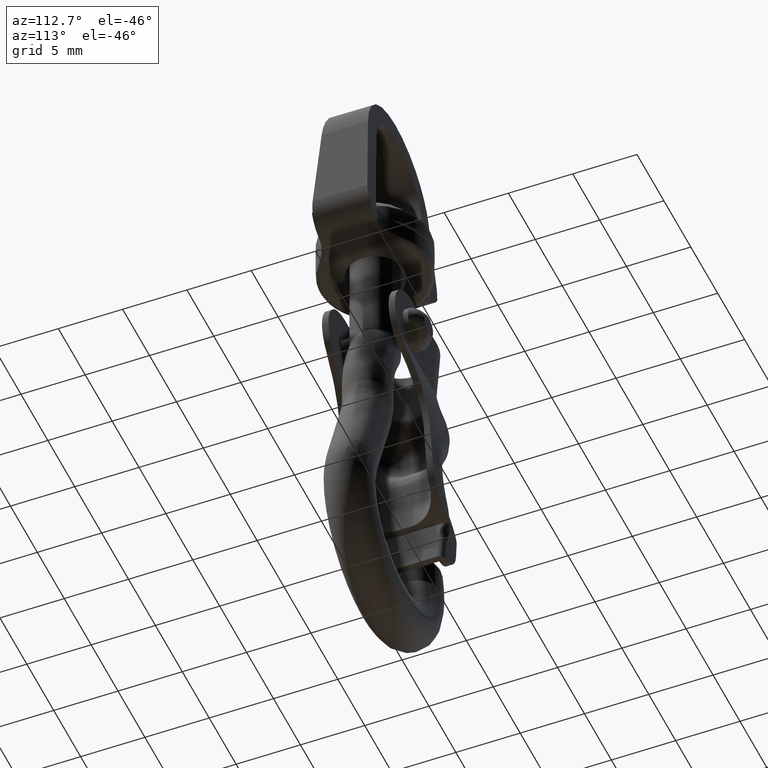
[diagram: clean part render]
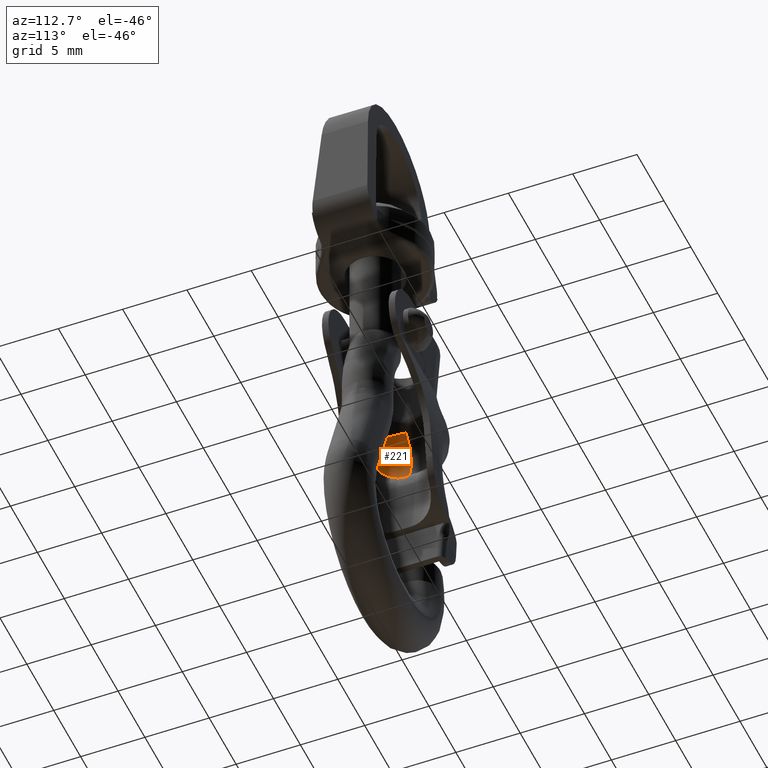
[diagram: same view with one face highlighted and labeled with its STEP entity id]
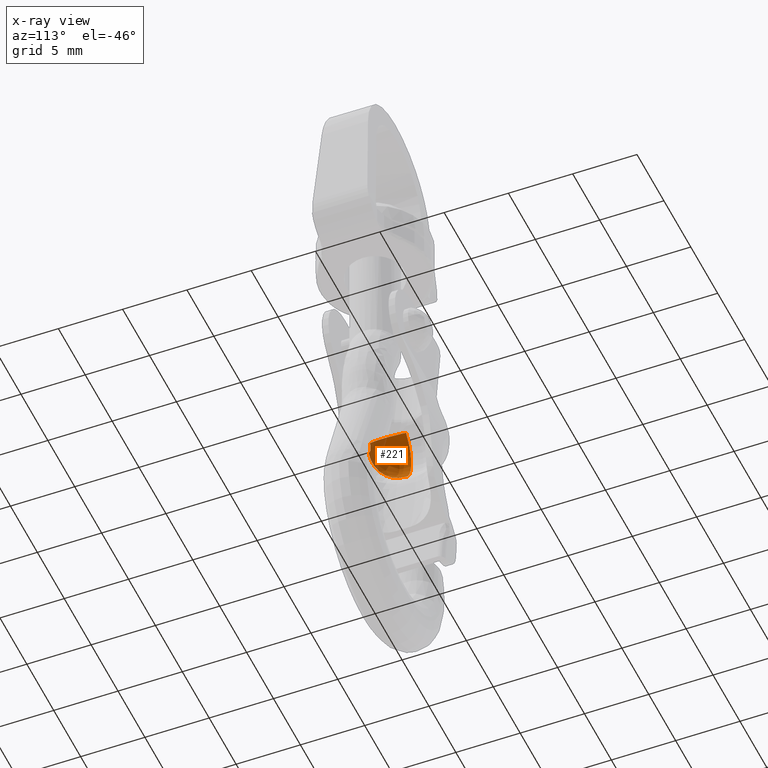
[diagram: x-ray of the same camera — body ghosted, the highlighted face saturated]
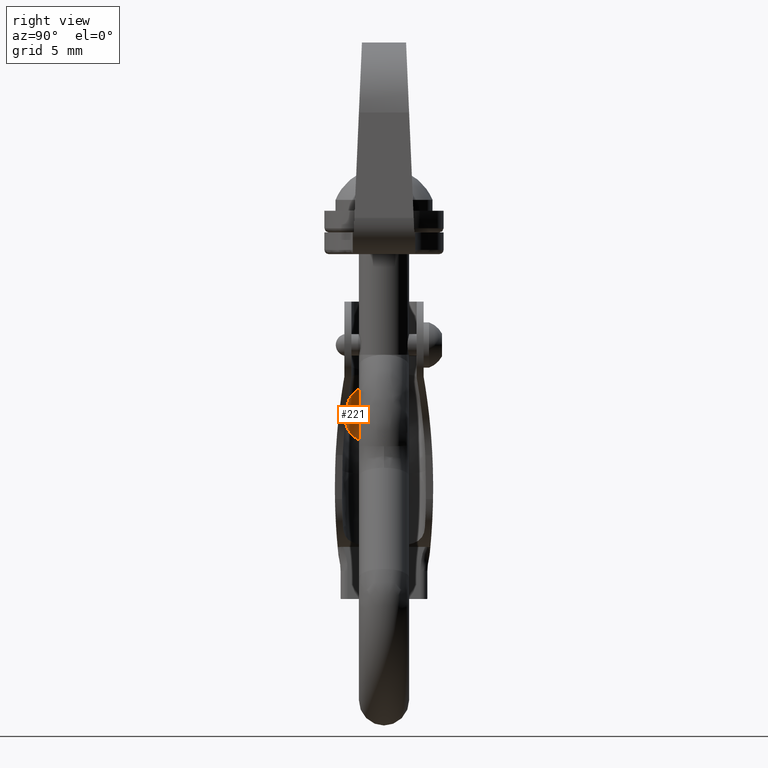
[diagram: same view with one face highlighted and labeled with its STEP entity id]
A machine part, auxiliary view. The second image highlights one B-rep face of the part: STEP entity #221.
The next image is the same camera in x-ray: the body ghosted, the highlighted face saturated — about 21% of this face is hidden behind the body in this view.
A second angle (right view) of the same face is appended — the face is thin or edge-on in the first view.
In plain terms, the highlighted face is a freeform B-spline surface patch.
Its self-contained STEP definition (entity closure, byte-faithful):
#221=ADVANCED_FACE('',(#1033),#1032,.F.);
#1032=( BOUNDED_SURFACE() B_SPLINE_SURFACE( 3,2,((#2688,#2689,#2690),(#2691,#2692,#2693),(#2694,#2695,#2696),(#2697,#2698,#2699),(#2700,#2701,#2702),(#2703,#2704,#2705),(#2706,#2707,#2708),(#2709,#2710,#2711),(#2712,#2713,#2714),(#2715,#2716,#2717),(#2718,#2719,#2720),(#2721,#2722,#2723),(#2724,#2725,#2726),(#2727,#2728,#2729),(#2730,#2731,#2732),(#2733,#2734,#2735)), .UNSPECIFIED.,.F.,.F.,.F.) B_SPLINE_SURFACE_WITH_KNOTS((4,2,2,2,2,2,2,4),(3,3),(0.00000000000E+00,1.26527707577E-04,2.53055415154E-04,3.79583122731E-04,5.06110830308E-04,6.32638537885E-04,7.59166245462E-04,1.01222166062E-03),(0.00000000000E+00,1.00000000000E+00), .UNSPECIFIED. ) GEOMETRIC_REPRESENTATION_ITEM() RATIONAL_B_SPLINE_SURFACE(((1.00000000000E+00,7.42193823949E-01,1.00000000000E+00),(1.00000000000E+00,7.40066285528E-01,1.00000000000E+00),(1.00000000000E+00,7.37693473058E-01,1.00000000000E+00),(1.00000000000E+00,7.32504871489E-01,1.00000000000E+00),(1.00000000000E+00,7.29656312430E-01,1.00000000000E+00),(1.00000000000E+00,7.23795674339E-01,1.00000000000E+00),(1.00000000000E+00,7.20763583507E-01,1.00000000000E+00),(1.00000000000E+00,7.14516278731E-01,1.00000000000E+00),(1.00000000000E+00,7.11397366190E-01,1.00000000000E+00),(1.00000000000E+00,7.05240530665E-01,1.00000000000E+00),(1.00000000000E+00,7.02159170684E-01,1.00000000000E+00),(1.00000000000E+00,6.96320199943E-01,1.00000000000E+00),(1.00000000000E+00,6.93540884471E-01,1.00000000000E+00),(1.00000000000E+00,6.85607250978E-01,1.00000000000E+00),(1.00000000000E+00,6.81129791725E-01,1.00000000000E+00),(1.00000000000E+00,6.77580281384E-01,1.00000000000E+00))) REPRESENTATION_ITEM('') SURFACE() );
#1033=FACE_OUTER_BOUND('',#2736,.T.);
#2688=CARTESIAN_POINT('',(-6.71819789873E+00,-4.15859157847E-01,-2.83002584347E+00));
#2689=CARTESIAN_POINT('',(-6.59182202704E+00,-2.44131124661E+00,-2.73313790295E+00));
#2690=CARTESIAN_POINT('',(-5.34922895240E+00,-2.64730649840E+00,-4.32729683635E+00));
#2691=CARTESIAN_POINT('',(-6.88577970407E+00,-4.19212451090E-01,-2.95850492553E+00));
#2692=CARTESIAN_POINT('',(-6.75463773362E+00,-2.45646943398E+00,-2.84289236839E+00));
#2693=CARTESIAN_POINT('',(-5.38307847330E+00,-2.65083301175E+00,-4.35458786716E+00));
#2694=CARTESIAN_POINT('',(-7.03581404419E+00,-4.22961627313E-01,-3.10305269605E+00));
#2695=CARTESIAN_POINT('',(-6.90379287486E+00,-2.47352702992E+00,-2.96776271660E+00));
#2696=CARTESIAN_POINT('',(-5.41338176481E+00,-2.65477564032E+00,-4.38529040387E+00));
#2697=CARTESIAN_POINT('',(-7.30222122761E+00,-4.31175408685E-01,-3.42284660333E+00));
#2698=CARTESIAN_POINT('',(-7.17690121938E+00,-2.51128856739E+00,-3.24906121922E+00));
#2699=CARTESIAN_POINT('',(-5.46719127126E+00,-2.66341346825E+00,-4.45321775621E+00));
#2700=CARTESIAN_POINT('',(-7.41928863598E+00,-4.35694375165E-01,-3.60027089544E+00));
#2701=CARTESIAN_POINT('',(-7.30169580654E+00,-2.53229562722E+00,-3.40787518117E+00));
#2702=CARTESIAN_POINT('',(-5.49083680324E+00,-2.66816573066E+00,-4.49090440847E+00));
#2703=CARTESIAN_POINT('',(-7.60842296149E+00,-4.45023415384E-01,-3.97070923848E+00));
#2704=CARTESIAN_POINT('',(-7.51339360557E+00,-2.57617437976E+00,-3.74635625183E+00));
#2705=CARTESIAN_POINT('',(-5.52903857943E+00,-2.67797639362E+00,-4.56958912547E+00));
#2706=CARTESIAN_POINT('',(-7.68205800955E+00,-4.49864876338E-01,-4.16490523714E+00));
#2707=CARTESIAN_POINT('',(-7.60163157379E+00,-2.59922139678E+00,-3.92732460624E+00));
#2708=CARTESIAN_POINT('',(-5.54391155491E+00,-2.68306779975E+00,-4.61083825131E+00));
#2709=CARTESIAN_POINT('',(-7.78622271842E+00,-4.59884940016E-01,-4.57179992338E+00));
#2710=CARTESIAN_POINT('',(-7.74022093330E+00,-2.64749759509E+00,-4.31484912453E+00));
#2711=CARTESIAN_POINT('',(-5.56495095323E+00,-2.69360516109E+00,-4.69726666092E+00));
#2712=CARTESIAN_POINT('',(-7.81500617760E+00,-4.64909394629E-01,-4.77826170454E+00));
#2713=CARTESIAN_POINT('',(-7.78795953049E+00,-2.67200185922E+00,-4.51569955359E+00));
#2714=CARTESIAN_POINT('',(-5.57076471233E+00,-2.69888900838E+00,-4.74112115656E+00));
#2715=CARTESIAN_POINT('',(-7.82706000805E+00,-4.74881579126E-01,-5.19316137097E+00));
#2716=CARTESIAN_POINT('',(-7.83894594876E+00,-2.72119599148E+00,-4.92804822476E+00));
#2717=CARTESIAN_POINT('',(-5.57319936616E+00,-2.70937601817E+00,-4.82924989712E+00));
#2718=CARTESIAN_POINT('',(-7.80972308100E+00,-4.79900579305E-01,-5.40464174583E+00));
#2719=CARTESIAN_POINT('',(-7.84146436107E+00,-2.74623782712E+00,-5.14271907529E+00));
#2720=CARTESIAN_POINT('',(-5.56969761366E+00,-2.71465413000E+00,-4.87417039271E+00));
#2721=CARTESIAN_POINT('',(-7.72985662063E+00,-4.89471734376E-01,-5.81297130706E+00));
#2722=CARTESIAN_POINT('',(-7.79786766148E+00,-2.79448631593E+00,-5.56573042832E+00));
#2723=CARTESIAN_POINT('',(-5.55356601856E+00,-2.72471940619E+00,-4.96090358049E+00));
#2724=CARTESIAN_POINT('',(-7.66791263517E+00,-4.94058409233E-01,-6.01119707361E+00));
#2725=CARTESIAN_POINT('',(-7.75210258942E+00,-2.81783367014E+00,-5.77521051436E+00));
#2726=CARTESIAN_POINT('',(-5.54105444021E+00,-2.72954287371E+00,-5.00300867206E+00));
#2727=CARTESIAN_POINT('',(-7.41425927225E+00,-5.07241005361E-01,-6.58755445788E+00));
#2728=CARTESIAN_POINT('',(-7.53755304844E+00,-2.88577470225E+00,-6.39781371882E+00));
#2729=CARTESIAN_POINT('',(-5.48982094709E+00,-2.74340603543E+00,-5.12543259587E+00));
#2730=CARTESIAN_POINT('',(-7.16328998420E+00,-5.14815236323E-01,-6.92806584457E+00));
#2731=CARTESIAN_POINT('',(-7.29857825459E+00,-2.92518562170E+00,-6.77758440006E+00));
#2732=CARTESIAN_POINT('',(-5.43913321912E+00,-2.75137094043E+00,-5.19775728680E+00));
#2733=CARTESIAN_POINT('',(-6.84183010402E+00,-5.20878352366E-01,-7.20469885324E+00));
#2734=CARTESIAN_POINT('',(-6.97252497956E+00,-2.95694435980E+00,-7.09222908992E+00));
#2735=CARTESIAN_POINT('',(-5.37420045813E+00,-2.75774742614E+00,-5.25652009977E+00));
#2736=EDGE_LOOP('',(#4141,#4142,#4143,#4144));
#4141=ORIENTED_EDGE('',*,*,#4806,.T.);
#4142=ORIENTED_EDGE('',*,*,#4807,.F.);
#4143=ORIENTED_EDGE('',*,*,#4802,.F.);
#4144=ORIENTED_EDGE('',*,*,#4808,.F.);
#4802=EDGE_CURVE('',#6364,#6365,#6366,.T.);
#4806=EDGE_CURVE('',#6392,#6393,#6394,.T.);
#4807=EDGE_CURVE('',#6365,#6393,#6400,.T.);
#4808=EDGE_CURVE('',#6392,#6364,#6406,.T.);
#6364=VERTEX_POINT('',#8895);
#6365=VERTEX_POINT('',#8896);
#6366=CIRCLE('',#8900,2.25000000000E+00);
#6392=VERTEX_POINT('',#8927);
#6393=VERTEX_POINT('',#8928);
#6394=CIRCLE('',#8932,2.25000000000E+00);
#6400=(BOUNDED_CURVE() B_SPLINE_CURVE(3,(#8933,#8934,#8935,#8936,#8937,#8938),.UNSPECIFIED.,.F.,.F.) B_SPLINE_CURVE_WITH_KNOTS((4,2,4),(0.00000000000E+00,5.33594046328E-04,1.06718809266E-03),.UNSPECIFIED.) CURVE() GEOMETRIC_REPRESENTATION_ITEM() RATIONAL_B_SPLINE_CURVE((1.00000000000E+00,1.00000000000E+00,1.00000000000E+00,1.00000000000E+00,1.00000000000E+00,1.00000000000E+00)) REPRESENTATION_ITEM('') );
#6406=(BOUNDED_CURVE() B_SPLINE_CURVE(3,(#8939,#8940,#8941,#8942,#8943,#8944,#8945,#8946,#8947,#8948,#8949,#8950,#8951,#8952,#8953,#8954,#8955,#8956),.UNSPECIFIED.,.F.,.F.) B_SPLINE_CURVE_WITH_KNOTS((4,2,2,2,2,2,2,2,4),(2.77744157045E-18,6.23167371372E-04,1.24633474274E-03,1.86950211411E-03,2.49266948549E-03,3.11583685686E-03,3.73900422823E-03,4.36217159960E-03,4.98533897097E-03),.UNSPECIFIED.) CURVE() GEOMETRIC_REPRESENTATION_ITEM() RATIONAL_B_SPLINE_CURVE((1.00000000000E+00,1.00000000000E+00,1.00000000000E+00,1.00000000000E+00,1.00000000000E+00,1.00000000000E+00,1.00000000000E+00,1.00000000000E+00,1.00000000000E+00,1.00000000000E+00,1.00000000000E+00,1.00000000000E+00,1.00000000000E+00,1.00000000000E+00,1.00000000000E+00,1.00000000000E+00,1.00000000000E+00,1.00000000000E+00)) REPRESENTATION_ITEM('') );
#8895=CARTESIAN_POINT('',(-6.84183010402E+00,-5.20878352366E-01,-7.20469885324E+00));
#8896=CARTESIAN_POINT('',(-5.37420045813E+00,-2.75774742614E+00,-5.25652009977E+00));
#8897=CARTESIAN_POINT('',(-5.37420045813E+00,-5.20878352366E-01,-5.49924782125E+00));
#8898=DIRECTION('',(-7.56086658661E-01,7.06037243235E-02,6.50652041191E-01));
#8899=DIRECTION('',(-6.52279842618E-01,-0.00000000000E+00,-7.57978236438E-01));
#8900=AXIS2_PLACEMENT_3D('',#8897,#8898,#8899);
#8927=CARTESIAN_POINT('',(-6.71819789873E+00,-4.15859157847E-01,-2.83002584347E+00));
#8928=CARTESIAN_POINT('',(-5.34922895240E+00,-2.64730649840E+00,-4.32729683635E+00));
#8929=CARTESIAN_POINT('',(-5.34922895240E+00,-4.15859157847E-01,-4.61564171033E+00));
#8930=DIRECTION('',(7.91165639245E-01,7.83787928484E-02,6.06558897478E-01));
#8931=DIRECTION('',(-6.08430642811E-01,4.35089702313E-18,7.93607051940E-01));
#8932=AXIS2_PLACEMENT_3D('',#8929,#8930,#8931);
#8933=CARTESIAN_POINT('',(-5.37420045813E+00,-2.75774742614E+00,-5.25652009977E+00));
#8934=CARTESIAN_POINT('',(-5.50584278080E+00,-2.74481997411E+00,-5.13738653937E+00));
#8935=CARTESIAN_POINT('',(-5.57667760418E+00,-2.72494933404E+00,-4.96013819149E+00));
#8936=CARTESIAN_POINT('',(-5.56731347854E+00,-2.68343368803E+00,-4.61122449656E+00));
#8937=CARTESIAN_POINT('',(-5.48738662949E+00,-2.66170003574E+00,-4.43868574430E+00));
#8938=CARTESIAN_POINT('',(-5.34922895240E+00,-2.64730649840E+00,-4.32729683635E+00));
#8939=CARTESIAN_POINT('',(-6.71819789873E+00,-4.15859157847E-01,-2.83002584347E+00));
#8940=CARTESIAN_POINT('',(-6.88541505126E+00,-4.19205151330E-01,-2.95822535903E+00));
#8941=CARTESIAN_POINT('',(-7.03527205693E+00,-4.22947501822E-01,-3.10250691173E+00));
#8942=CARTESIAN_POINT('',(-7.30160123110E+00,-4.31153719517E-01,-3.42199800430E+00));
#8943=CARTESIAN_POINT('',(-7.41877194400E+00,-4.35672345144E-01,-3.59940166889E+00));
#8944=CARTESIAN_POINT('',(-7.60814113853E+00,-4.45006073243E-01,-3.97001509520E+00));
#8945=CARTESIAN_POINT('',(-7.68191081066E+00,-4.49852275407E-01,-4.16439519626E+00));
#8946=CARTESIAN_POINT('',(-7.78626284227E+00,-4.59887242524E-01,-4.57189176768E+00));
#8947=CARTESIAN_POINT('',(-7.81507137553E+00,-4.64919568163E-01,-4.77867903890E+00));
#8948=CARTESIAN_POINT('',(-7.82703649735E+00,-4.74906045690E-01,-5.19418528258E+00));
#8949=CARTESIAN_POINT('',(-7.80957507839E+00,-4.79932373955E-01,-5.40598570084E+00));
#8950=CARTESIAN_POINT('',(-7.72941561100E+00,-4.89510422821E-01,-5.81463443053E+00));
#8951=CARTESIAN_POINT('',(-7.66730738501E+00,-4.94097804355E-01,-6.01290623447E+00));
#8952=CARTESIAN_POINT('',(-7.49795282861E+00,-5.02883366418E-01,-6.39704711379E+00));
#8953=CARTESIAN_POINT('',(-7.39239757007E+00,-5.06975073078E-01,-6.57827852406E+00));
#8954=CARTESIAN_POINT('',(-7.14516442682E+00,-5.14440484077E-01,-6.91222070745E+00));
#8955=CARTESIAN_POINT('',(-7.00154383514E+00,-5.17865960924E-01,-7.06725684977E+00));
#8956=CARTESIAN_POINT('',(-6.84183010402E+00,-5.20878352366E-01,-7.20469885324E+00));